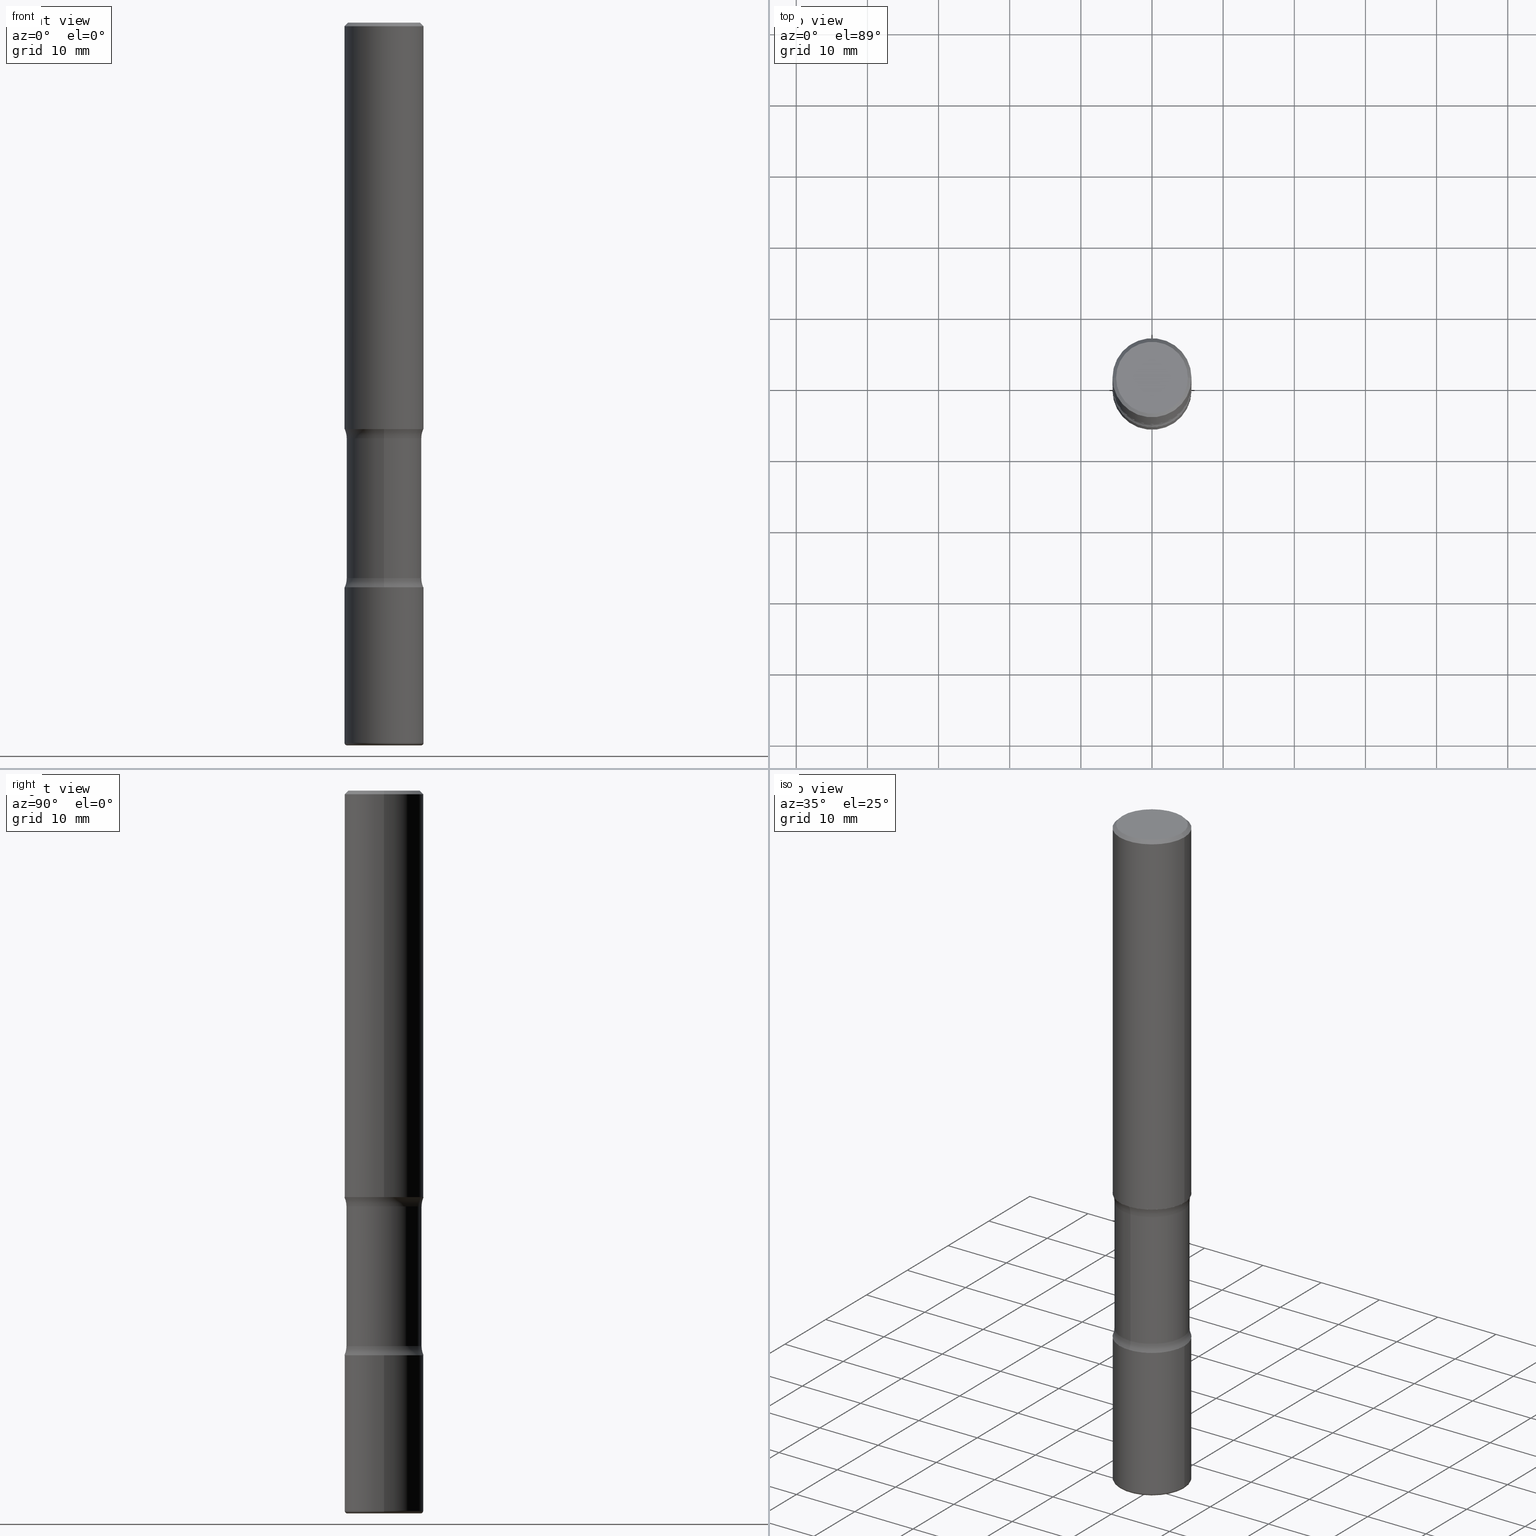
[diagram: canonical four-view strip — front | top / right | iso, engineering-drawing reading convention]
A machine part, canonical four-view strip (front | top / right | iso — engineering-drawing reading convention). The complete STEP part file that produces these views, byte-faithful:
ISO-10303-21;
HEADER;
FILE_DESCRIPTION (( 'STEP AP203' ),
    '1' );
FILE_NAME ('37858.STEP',
    '2024-03-02T00:50:00',
    ( '' ),
    ( '' ),
    'SwSTEP 2.0',
    'SolidWorks 2023',
    '' );
FILE_SCHEMA (( 'CONFIG_CONTROL_DESIGN' ));
ENDSEC;

DATA;
#1 = CC_DESIGN_PERSON_AND_ORGANIZATION_ASSIGNMENT ( #457, #62, ( #479 ) ) ;
#2 = CARTESIAN_POINT ( 'NONE',  ( -0.2187500000000003331, -1.235924090081471176E-14, -3.984999999999998987 ) ) ;
#3 = ORIENTED_EDGE ( 'NONE', *, *, #413, .F. ) ;
#4 = CIRCLE ( 'NONE', #106, 0.1250000000000000278 ) ;
#5 = ADVANCED_FACE ( 'NONE', ( #502 ), #344, .T. ) ;
#6 = CIRCLE ( 'NONE', #169, 0.2078125000000000111 ) ;
#7 = FACE_OUTER_BOUND ( 'NONE', #109, .T. ) ;
#8 = CARTESIAN_POINT ( 'NONE',  ( 4.890937612370289799E-31, -6.982962677686315028E-17, -0.02000000000000006981 ) ) ;
#9 = ORIENTED_EDGE ( 'NONE', *, *, #167, .T. ) ;
#10 = DIRECTION ( 'NONE',  ( -1.000000000000000000, 6.982962677686265922E-15, -4.883557194083112340E-29 ) ) ;
#11 = EDGE_LOOP ( 'NONE', ( #329, #9, #542, #165 ) ) ;
#12 = PRODUCT_DEFINITION ( 'UNKNOWN', '', #479, #507 ) ;
#13 = DIRECTION ( 'NONE',  ( 1.000000000000000000, -6.982962677686266711E-15, 0.000000000000000000 ) ) ;
#14 = CALENDAR_DATE ( 2024, 1, 3 ) ;
#15 = VERTEX_POINT ( 'NONE', #303 ) ;
#16 = AXIS2_PLACEMENT_3D ( 'NONE', #381, #513, #42 ) ;
#17 = CIRCLE ( 'NONE', #339, 0.2078125000000000389 ) ;
#18 = AXIS2_PLACEMENT_3D ( 'NONE', #263, #259, #232 ) ;
#19 = ORIENTED_EDGE ( 'NONE', *, *, #50, .F. ) ;
#20 = PERSON_AND_ORGANIZATION ( #195, #449 ) ;
#21 = ORIENTED_EDGE ( 'NONE', *, *, #119, .F. ) ;
#22 = CALENDAR_DATE ( 2024, 1, 3 ) ;
#23 = ORIENTED_EDGE ( 'NONE', *, *, #173, .T. ) ;
#24 = EDGE_CURVE ( 'NONE', #93, #15, #96, .T. ) ;
#25 = AXIS2_PLACEMENT_3D ( 'NONE', #518, #389, #432 ) ;
#26 = CARTESIAN_POINT ( 'NONE',  ( 7.642090019328550744E-29, -1.091087918388482645E-14, -3.124999999999999112 ) ) ;
#27 = AXIS2_PLACEMENT_3D ( 'NONE', #446, #87, #139 ) ;
#28 = DATE_AND_TIME ( #417, #332 ) ;
#29 = ORIENTED_EDGE ( 'NONE', *, *, #200, .T. ) ;
#30 = CARTESIAN_POINT ( 'NONE',  ( 1.451146931456732915E-15, 0.2078124999999918787, -2.301134588037355932 ) ) ;
#31 = EDGE_CURVE ( 'NONE', #201, #124, #464, .T. ) ;
#32 = CARTESIAN_POINT ( 'NONE',  ( -2.283259489883281366E-15, -0.3328125000000081157, -2.301134588037354156 ) ) ;
#33 = CONICAL_SURFACE ( 'NONE', #455, 0.2187499999999998890, 0.7853981633974480570 ) ;
#34 = CARTESIAN_POINT ( 'NONE',  ( -0.2187500000000000278, 1.554312234475219354E-15, -1.076017050993260762E-29 ) ) ;
#35 = CIRCLE ( 'NONE', #540, 0.1250000000000000278 ) ;
#36 = EDGE_CURVE ( 'NONE', #559, #124, #300, .T. ) ;
#37 = EDGE_CURVE ( 'NONE', #418, #559, #133, .T. ) ;
#38 = CARTESIAN_POINT ( 'NONE',  ( 4.890937612370289799E-31, -6.982962677686315028E-17, -0.02000000000000006981 ) ) ;
#39 = PLANE ( 'NONE',  #203 ) ;
#40 = FACE_OUTER_BOUND ( 'NONE', #374, .T. ) ;
#41 = ADVANCED_BREP_SHAPE_REPRESENTATION ( '37858', ( #427, #60, #77, #212 ), #421 ) ;
#42 = DIRECTION ( 'NONE',  ( 1.000000000000000000, -6.982962677686266711E-15, 4.876176775795935793E-29 ) ) ;
#43 = DIRECTION ( 'NONE',  ( -0.7071067811865473507, 2.468850131082255088E-15, -0.7071067811865476838 ) ) ;
#44 = EDGE_CURVE ( 'NONE', #121, #247, #298, .T. ) ;
#45 = CARTESIAN_POINT ( 'NONE',  ( 7.642090019328550744E-29, -1.091087918388482645E-14, -3.124999999999999112 ) ) ;
#46 = AXIS2_PLACEMENT_3D ( 'NONE', #131, #174, #382 ) ;
#47 = LOCAL_TIME ( 19, 50, 0.000000000000000000, #156 ) ;
#48 = ORIENTED_EDGE ( 'NONE', *, *, #340, .F. ) ;
#49 = AXIS2_PLACEMENT_3D ( 'NONE', #410, #103, #365 ) ;
#50 = EDGE_CURVE ( 'NONE', #163, #408, #448, .T. ) ;
#51 = DIRECTION ( 'NONE',  ( -2.445468806185136877E-29, 3.491481338843145188E-15, 1.000000000000000000 ) ) ;
#52 = ORIENTED_EDGE ( 'NONE', *, *, #90, .T. ) ;
#53 = CC_DESIGN_DATE_AND_TIME_ASSIGNMENT ( #71, #326, ( #12 ) ) ;
#54 = PLANE ( 'NONE',  #554 ) ;
#55 = VERTEX_POINT ( 'NONE', #258 ) ;
#56 = FACE_OUTER_BOUND ( 'NONE', #309, .T. ) ;
#57 = CARTESIAN_POINT ( 'NONE',  ( -1.463215588587134090E-15, -0.2078125000000107248, -3.073865411962643179 ) ) ;
#58 = ORIENTED_EDGE ( 'NONE', *, *, #494, .T. ) ;
#59 = AXIS2_PLACEMENT_3D ( 'NONE', #189, #114, #190 ) ;
#60 = MANIFOLD_SOLID_BREP ( 'Body-Move/Copy2[2]', #461 ) ;
#61 = DIRECTION ( 'NONE',  ( -2.445468806185136597E-29, 3.491481338843145583E-15, 1.000000000000000000 ) ) ;
#62 = PERSON_AND_ORGANIZATION_ROLE ( 'creator' ) ;
#63 = EDGE_LOOP ( 'NONE', ( #499, #376, #48, #524 ) ) ;
#64 = ADVANCED_FACE ( 'NONE', ( #295 ), #213, .T. ) ;
#65 = PERSON_AND_ORGANIZATION_ROLE ( 'design_supplier' ) ;
#66 = ORIENTED_EDGE ( 'NONE', *, *, #505, .T. ) ;
#67 = LINE ( 'NONE', #241, #384 ) ;
#68 = AXIS2_PLACEMENT_3D ( 'NONE', #218, #305, #13 ) ;
#69 = DATE_AND_TIME ( #234, #240 ) ;
#70 = VERTEX_POINT ( 'NONE', #129 ) ;
#71 = DATE_AND_TIME ( #22, #350 ) ;
#72 = ORIENTED_EDGE ( 'NONE', *, *, #36, .F. ) ;
#73 = CARTESIAN_POINT ( 'NONE',  ( 1.387863832190144049E-15, 0.1987499999999998157, -6.939319160950745885E-16 ) ) ;
#74 = CARTESIAN_POINT ( 'NONE',  ( 5.502304813916556222E-29, -7.855833012397075293E-15, -2.249999999999999556 ) ) ;
#75 =( CONVERSION_BASED_UNIT ( 'INCH', #391 ) LENGTH_UNIT ( ) NAMED_UNIT ( #130 ) );
#76 = ORIENTED_EDGE ( 'NONE', *, *, #158, .F. ) ;
#77 = MANIFOLD_SOLID_BREP ( 'Body-Move/Copy2[4]', #221 ) ;
#78 = AXIS2_PLACEMENT_3D ( 'NONE', #74, #503, #122 ) ;
#79 = CARTESIAN_POINT ( 'NONE',  ( 9.781875224740546387E-29, -1.396592535537258233E-14, -4.000000000000000000 ) ) ;
#80 = DIRECTION ( 'NONE',  ( 2.445468806185136597E-29, -3.491481338843145583E-15, -1.000000000000000000 ) ) ;
#81 = ADVANCED_FACE ( 'NONE', ( #342 ), #33, .T. ) ;
#82 = CARTESIAN_POINT ( 'NONE',  ( 7.642090019328550744E-29, -1.091087918388482645E-14, -3.124999999999999112 ) ) ;
#83 = DIRECTION ( 'NONE',  ( -1.000000000000000000, 6.982962677686265922E-15, -4.883557194083112340E-29 ) ) ;
#84 = AXIS2_PLACEMENT_3D ( 'NONE', #183, #476, #271 ) ;
#85 = CARTESIAN_POINT ( 'NONE',  ( 9.745193192647766827E-29, -1.391355313528993249E-14, -3.984999999999998987 ) ) ;
#86 = APPROVAL_PERSON_ORGANIZATION ( #541, #387, #334 ) ;
#87 = DIRECTION ( 'NONE',  ( 2.438088387897960049E-29, -3.491481338843145188E-15, -1.000000000000000000 ) ) ;
#88 = CARTESIAN_POINT ( 'NONE',  ( 0.2037500000000001810, -1.538870400095115901E-14, -4.000000000000000000 ) ) ;
#89 = CARTESIAN_POINT ( 'NONE',  ( -1.463215588587155192E-15, -0.2078125000000081712, -2.301134588037354156 ) ) ;
#90 = EDGE_CURVE ( 'NONE', #557, #247, #404, .T. ) ;
#91 = DIRECTION ( 'NONE',  ( 6.982962677686265922E-15, 1.000000000000000000, -3.352515114831814446E-15 ) ) ;
#92 = DIRECTION ( 'NONE',  ( 2.542508401758147997E-29, -3.352515114831814446E-15, -1.000000000000000000 ) ) ;
#93 = VERTEX_POINT ( 'NONE', #89 ) ;
#94 = FACE_OUTER_BOUND ( 'NONE', #157, .T. ) ;
#95 = DIRECTION ( 'NONE',  ( 1.000000000000000000, -6.982962677686265922E-15, 0.000000000000000000 ) ) ;
#96 = CIRCLE ( 'NONE', #437, 0.1250000000000000278 ) ;
#97 = AXIS2_PLACEMENT_3D ( 'NONE', #273, #312, #394 ) ;
#98 = VECTOR ( 'NONE', #43, 39.37007874015748143 ) ;
#99 = ADVANCED_FACE ( 'NONE', ( #390 ), #286, .F. ) ;
#100 = CARTESIAN_POINT ( 'NONE',  ( 0.000000000000000000, 0.000000000000000000, 0.000000000000000000 ) ) ;
#101 = DIRECTION ( 'NONE',  ( 2.542508401758147997E-29, -3.352515114831814446E-15, -1.000000000000000000 ) ) ;
#102 = EDGE_LOOP ( 'NONE', ( #285, #327 ) ) ;
#103 = DIRECTION ( 'NONE',  ( -2.445468806185136597E-29, 3.491481338843145583E-15, 1.000000000000000000 ) ) ;
#104 = LINE ( 'NONE', #230, #98 ) ;
#105 = ORIENTED_EDGE ( 'NONE', *, *, #251, .T. ) ;
#106 = AXIS2_PLACEMENT_3D ( 'NONE', #290, #248, #416 ) ;
#107 = LOCAL_TIME ( 19, 50, 0.000000000000000000, #279 ) ;
#108 = PERSON_AND_ORGANIZATION ( #195, #449 ) ;
#109 = EDGE_LOOP ( 'NONE', ( #314, #395, #72, #76 ) ) ;
#110 = EDGE_CURVE ( 'NONE', #360, #238, #366, .T. ) ;
#111 = CARTESIAN_POINT ( 'NONE',  ( 7.517041979366069235E-29, -1.073234372398296787E-14, -3.073865411962643623 ) ) ;
#112 = APPLICATION_PROTOCOL_DEFINITION ( 'international standard', 'config_control_design', 1994, #331 ) ;
#113 = EDGE_LOOP ( 'NONE', ( #166, #336, #493, #282 ) ) ;
#114 = DIRECTION ( 'NONE',  ( 7.105427357601001859E-15, 1.000000000000000000, -3.491481338843145583E-15 ) ) ;
#115 = PERSON_AND_ORGANIZATION ( #195, #449 ) ;
#116 = ORIENTED_EDGE ( 'NONE', *, *, #24, .T. ) ;
#117 = AXIS2_PLACEMENT_3D ( 'NONE', #8, #147, #471 ) ;
#118 = CIRCLE ( 'NONE', #18, 0.2187500000000002498 ) ;
#119 = EDGE_CURVE ( 'NONE', #270, #458, #260, .T. ) ;
#120 = COORDINATED_UNIVERSAL_TIME_OFFSET ( 5, 0, .BEHIND. ) ;
#121 = VERTEX_POINT ( 'NONE', #30 ) ;
#122 = DIRECTION ( 'NONE',  ( 1.000000000000000000, -6.982962677686263555E-15, 0.000000000000000000 ) ) ;
#123 = DATE_AND_TIME ( #537, #47 ) ;
#124 = VERTEX_POINT ( 'NONE', #545 ) ;
#125 = CC_DESIGN_PERSON_AND_ORGANIZATION_ASSIGNMENT ( #20, #492, ( #380 ) ) ;
#126 = DIRECTION ( 'NONE',  ( 1.000000000000000000, -6.982962677686266711E-15, 0.000000000000000000 ) ) ;
#127 = AXIS2_PLACEMENT_3D ( 'NONE', #385, #210, #338 ) ;
#128 = CIRCLE ( 'NONE', #252, 0.2037500000000001810 ) ;
#129 = CARTESIAN_POINT ( 'NONE',  ( 1.527523085743927049E-15, 0.2187499999999923117, -2.250000000000000444 ) ) ;
#130 = DIMENSIONAL_EXPONENTS ( 1.000000000000000000, 0.000000000000000000, 0.000000000000000000, 0.000000000000000000, 0.000000000000000000, 0.000000000000000000, 0.000000000000000000 ) ;
#131 = CARTESIAN_POINT ( 'NONE',  ( 0.000000000000000000, 0.000000000000000000, 0.000000000000000000 ) ) ;
#132 = CARTESIAN_POINT ( 'NONE',  ( 5.579661872426862939E-29, -8.102664672140540691E-15, -2.301134588037355044 ) ) ;
#133 = LINE ( 'NONE', #292, #438 ) ;
#134 = PLANE ( 'NONE',  #516 ) ;
#135 = DIRECTION ( 'NONE',  ( 6.982962677686265133E-15, 1.000000000000000000, -3.943720411906303717E-15 ) ) ;
#136 = AXIS2_PLACEMENT_3D ( 'NONE', #553, #462, #171 ) ;
#137 = EDGE_CURVE ( 'NONE', #93, #121, #485, .T. ) ;
#138 = DIRECTION ( 'NONE',  ( -2.445468806185136877E-29, 3.491481338843145188E-15, 1.000000000000000000 ) ) ;
#139 = DIRECTION ( 'NONE',  ( -1.000000000000000000, 6.982962677686265922E-15, -4.876176775795935793E-29 ) ) ;
#140 = DIRECTION ( 'NONE',  ( 2.542508401758147997E-29, -3.352515114831814446E-15, -1.000000000000000000 ) ) ;
#141 = DIRECTION ( 'NONE',  ( 2.542508401758147997E-29, -3.352515114831814446E-15, -1.000000000000000000 ) ) ;
#142 = DIRECTION ( 'NONE',  ( 1.000000000000000000, -6.982962677686271444E-15, 4.883557194083114583E-29 ) ) ;
#143 = EDGE_CURVE ( 'NONE', #418, #289, #168, .T. ) ;
#144 = FACE_OUTER_BOUND ( 'NONE', #11, .T. ) ;
#145 = VECTOR ( 'NONE', #138, 39.37007874015748143 ) ;
#146 = ORIENTED_EDGE ( 'NONE', *, *, #37, .T. ) ;
#147 = DIRECTION ( 'NONE',  ( 2.445468806185136597E-29, -3.491481338843145583E-15, -1.000000000000000000 ) ) ;
#148 = ORIENTED_EDGE ( 'NONE', *, *, #137, .F. ) ;
#149 = CARTESIAN_POINT ( 'NONE',  ( -0.2037500000000001810, -1.243871771603804148E-14, -4.000000000000000000 ) ) ;
#150 = APPROVAL_DATE_TIME ( #123, #179 ) ;
#151 = ORIENTED_EDGE ( 'NONE', *, *, #494, .F. ) ;
#152 = AXIS2_PLACEMENT_3D ( 'NONE', #512, #315, #266 ) ;
#153 = CC_DESIGN_SECURITY_CLASSIFICATION ( #261, ( #479 ) ) ;
#154 = DIRECTION ( 'NONE',  ( 2.542508401758147997E-29, -3.352515114831814446E-15, -1.000000000000000000 ) ) ;
#155 = VERTEX_POINT ( 'NONE', #347 ) ;
#156 = COORDINATED_UNIVERSAL_TIME_OFFSET ( 5, 0, .BEHIND. ) ;
#157 = EDGE_LOOP ( 'NONE', ( #148, #116, #501, #249 ) ) ;
#158 = EDGE_CURVE ( 'NONE', #155, #559, #296, .T. ) ;
#159 = DIRECTION ( 'NONE',  ( 2.438088387897960049E-29, -3.491481338843145188E-15, -1.000000000000000000 ) ) ;
#160 = ORIENTED_EDGE ( 'NONE', *, *, #110, .T. ) ;
#161 = CIRCLE ( 'NONE', #49, 0.1987499999999998157 ) ;
#162 = APPROVAL_STATUS ( 'not_yet_approved' ) ;
#163 = VERTEX_POINT ( 'NONE', #491 ) ;
#164 = ADVANCED_FACE ( 'NONE', ( #409 ), #39, .F. ) ;
#165 = ORIENTED_EDGE ( 'NONE', *, *, #343, .F. ) ;
#166 = ORIENTED_EDGE ( 'NONE', *, *, #287, .T. ) ;
#167 = EDGE_CURVE ( 'NONE', #201, #155, #358, .T. ) ;
#168 = CIRCLE ( 'NONE', #46, 0.1987499999999998157 ) ;
#169 = AXIS2_PLACEMENT_3D ( 'NONE', #450, #475, #551 ) ;
#170 = DIRECTION ( 'NONE',  ( 6.860497997771532351E-15, 1.000000000000000000, 0.000000000000000000 ) ) ;
#171 = DIRECTION ( 'NONE',  ( 6.982962677686265133E-15, 1.000000000000000000, -2.629146941270869802E-15 ) ) ;
#172 = DIRECTION ( 'NONE',  ( -6.982962677686265133E-15, -1.000000000000000000, 0.000000000000000000 ) ) ;
#173 = EDGE_CURVE ( 'NONE', #55, #557, #4, .T. ) ;
#174 = DIRECTION ( 'NONE',  ( -2.445468806185136597E-29, 3.491481338843145583E-15, 1.000000000000000000 ) ) ;
#175 = DIRECTION ( 'NONE',  ( 6.982962677686265922E-15, 1.000000000000000000, -3.352515114831814446E-15 ) ) ;
#176 = FACE_OUTER_BOUND ( 'NONE', #63, .T. ) ;
#177 = PRODUCT_RELATED_PRODUCT_CATEGORY ( 'detail', '', ( #380 ) ) ;
#178 = DIRECTION ( 'NONE',  ( -2.445468806185136597E-29, 3.491481338843145583E-15, 1.000000000000000000 ) ) ;
#179 = APPROVAL ( #489, 'UNSPECIFIED' ) ;
#180 = CARTESIAN_POINT ( 'NONE',  ( -0.1987499999999998157, 1.422778645578575501E-15, -9.827974342635076689E-30 ) ) ;
#181 = ORIENTED_EDGE ( 'NONE', *, *, #357, .F. ) ;
#182 = FACE_OUTER_BOUND ( 'NONE', #519, .T. ) ;
#183 = CARTESIAN_POINT ( 'NONE',  ( 9.745193192647766827E-29, -1.391355313528993249E-14, -3.984999999999998987 ) ) ;
#184 = CIRCLE ( 'NONE', #514, 0.2187500000000001943 ) ;
#185 = AXIS2_PLACEMENT_3D ( 'NONE', #386, #348, #549 ) ;
#186 = ORIENTED_EDGE ( 'NONE', *, *, #420, .T. ) ;
#187 = CARTESIAN_POINT ( 'NONE',  ( 1.451146931456752440E-15, 0.2078124999999892975, -3.073865411962644068 ) ) ;
#188 = DIRECTION ( 'NONE',  ( -6.982962677686267499E-15, -1.000000000000000000, 0.000000000000000000 ) ) ;
#189 = CARTESIAN_POINT ( 'NONE',  ( -0.2037500000000002087, -1.246582231117872609E-14, -3.984999999999998987 ) ) ;
#190 = DIRECTION ( 'NONE',  ( -1.000000000000000000, 7.105427357600953738E-15, 0.000000000000000000 ) ) ;
#191 = APPROVAL_DATE_TIME ( #28, #387 ) ;
#192 = ORIENTED_EDGE ( 'NONE', *, *, #225, .F. ) ;
#193 = VECTOR ( 'NONE', #428, 39.37007874015748143 ) ;
#194 = AXIS2_PLACEMENT_3D ( 'NONE', #434, #178, #307 ) ;
#195 = PERSON ( 'UNSPECIFIED', 'UNSPECIFIED', 'UNSPECIFIED', ('UNSPECIFIED'), ('UNSPECIFIED'), ('UNSPECIFIED') ) ;
#196 =( NAMED_UNIT ( * ) SI_UNIT ( $, .STERADIAN. ) SOLID_ANGLE_UNIT ( ) );
#197 = EDGE_LOOP ( 'NONE', ( #192, #206, #272, #280 ) ) ;
#198 = CARTESIAN_POINT ( 'NONE',  ( 1.527523085743948349E-15, 0.2187499999999893141, -3.124999999999999556 ) ) ;
#199 = ORIENTED_EDGE ( 'NONE', *, *, #110, .F. ) ;
#200 = EDGE_CURVE ( 'NONE', #408, #163, #184, .T. ) ;
#201 = VERTEX_POINT ( 'NONE', #396 ) ;
#202 = CLOSED_SHELL ( 'NONE', ( #5, #320, #556, #245, #236, #257 ) ) ;
#203 = AXIS2_PLACEMENT_3D ( 'NONE', #73, #159, #346 ) ;
#204 = DIRECTION ( 'NONE',  ( -2.445468806185136597E-29, 3.491481338843145583E-15, 1.000000000000000000 ) ) ;
#205 = APPROVAL_DATE_TIME ( #406, #362 ) ;
#206 = ORIENTED_EDGE ( 'NONE', *, *, #137, .T. ) ;
#207 = PRODUCT_DEFINITION_SHAPE ( 'NONE', 'NONE',  #12 ) ;
#208 = DIRECTION ( 'NONE',  ( 1.000000000000000000, -6.982962677686269077E-15, 0.000000000000000000 ) ) ;
#209 = ADVANCED_FACE ( 'NONE', ( #182 ), #268, .F. ) ;
#210 = DIRECTION ( 'NONE',  ( 2.542508401758147997E-29, -3.352515114831814446E-15, -1.000000000000000000 ) ) ;
#211 = VECTOR ( 'NONE', #445, 39.37007874015748143 ) ;
#212 = AXIS2_PLACEMENT_3D ( 'NONE', #411, #322, #281 ) ;
#213 = CYLINDRICAL_SURFACE ( 'NONE', #136, 0.2078125000000000111 ) ;
#214 = EDGE_CURVE ( 'NONE', #238, #458, #419, .T. ) ;
#215 = PLANE ( 'NONE',  #185 ) ;
#216 = DIRECTION ( 'NONE',  ( -2.445468806185136597E-29, 3.491481338843145583E-15, 1.000000000000000000 ) ) ;
#217 =( LENGTH_UNIT ( ) NAMED_UNIT ( * ) SI_UNIT ( $, .METRE. ) );
#218 = CARTESIAN_POINT ( 'NONE',  ( 4.890937612370289799E-31, -6.982962677686315028E-17, -0.02000000000000006981 ) ) ;
#219 = DIRECTION ( 'NONE',  ( 6.982962677686265922E-15, 1.000000000000000000, -3.746534391310985612E-15 ) ) ;
#220 = DIRECTION ( 'NONE',  ( 2.542508401758147997E-29, -3.352515114831814446E-15, -1.000000000000000000 ) ) ;
#221 = CLOSED_SHELL ( 'NONE', ( #64, #407, #429, #500, #543, #209, #99, #284 ) ) ;
#222 = CARTESIAN_POINT ( 'NONE',  ( 7.642090019328550744E-29, -1.091087918388482645E-14, -3.124999999999999112 ) ) ;
#223 = AXIS2_PLACEMENT_3D ( 'NONE', #253, #265, #508 ) ;
#224 = DIRECTION ( 'NONE',  ( 6.982962677686265922E-15, 1.000000000000000000, -2.497689594207324005E-15 ) ) ;
#225 = EDGE_CURVE ( 'NONE', #93, #557, #306, .T. ) ;
#226 = DIRECTION ( 'NONE',  ( -1.000000000000000000, 6.982962677686265922E-15, -4.876176775795935793E-29 ) ) ;
#227 = EDGE_LOOP ( 'NONE', ( #538, #23, #52, #3 ) ) ;
#228 = FACE_OUTER_BOUND ( 'NONE', #527, .T. ) ;
#229 = AXIS2_PLACEMENT_3D ( 'NONE', #472, #220, #388 ) ;
#230 = CARTESIAN_POINT ( 'NONE',  ( -0.2187499999999998890, 1.457693458967006953E-15, -0.02000000000000006981 ) ) ;
#231 = CC_DESIGN_DATE_AND_TIME_ASSIGNMENT ( #69, #375, ( #261 ) ) ;
#232 = DIRECTION ( 'NONE',  ( 6.982962677686265922E-15, 1.000000000000000000, -3.746534391310985612E-15 ) ) ;
#233 = CARTESIAN_POINT ( 'NONE',  ( 0.000000000000000000, 0.000000000000000000, 0.000000000000000000 ) ) ;
#234 = CALENDAR_DATE ( 2024, 1, 3 ) ;
#235 = EDGE_LOOP ( 'NONE', ( #456, #560, #436, #186 ) ) ;
#236 = ADVANCED_FACE ( 'NONE', ( #56 ), #440, .T. ) ;
#237 = COORDINATED_UNIVERSAL_TIME_OFFSET ( 5, 0, .BEHIND. ) ;
#238 = VERTEX_POINT ( 'NONE', #88 ) ;
#239 = CIRCLE ( 'NONE', #546, 0.2187500000000000833 ) ;
#240 = LOCAL_TIME ( 19, 50, 0.000000000000000000, #237 ) ;
#241 = CARTESIAN_POINT ( 'NONE',  ( 0.2187500000000001665, -1.527523085743872026E-15, 1.066663669705361725E-29 ) ) ;
#242 =( NAMED_UNIT ( * ) PLANE_ANGLE_UNIT ( ) SI_UNIT ( $, .RADIAN. ) );
#243 = ADVANCED_FACE ( 'NONE', ( #144 ), #555, .T. ) ;
#244 = ORIENTED_EDGE ( 'NONE', *, *, #343, .T. ) ;
#245 = ADVANCED_FACE ( 'NONE', ( #228 ), #349, .T. ) ;
#246 = PERSON_AND_ORGANIZATION ( #195, #449 ) ;
#247 = VERTEX_POINT ( 'NONE', #187 ) ;
#248 = DIRECTION ( 'NONE',  ( 1.000000000000000000, -6.860497997771530774E-15, 4.842500725038393941E-29 ) ) ;
#249 = ORIENTED_EDGE ( 'NONE', *, *, #505, .F. ) ;
#250 = VECTOR ( 'NONE', #51, 39.37007874015748143 ) ;
#251 = EDGE_CURVE ( 'NONE', #270, #408, #474, .T. ) ;
#252 = AXIS2_PLACEMENT_3D ( 'NONE', #400, #444, #525 ) ;
#253 = CARTESIAN_POINT ( 'NONE',  ( 7.512079899623131265E-29, -1.073944970459889485E-14, -3.073865411962643623 ) ) ;
#254 = EDGE_CURVE ( 'NONE', #55, #398, #267, .T. ) ;
#255 = CARTESIAN_POINT ( 'NONE',  ( 4.890937612370289799E-31, -6.982962677686315028E-17, -0.02000000000000006981 ) ) ;
#256 = ADVANCED_FACE ( 'NONE', ( #40 ), #321, .T. ) ;
#257 = ADVANCED_FACE ( 'NONE', ( #302 ), #54, .F. ) ;
#258 = CARTESIAN_POINT ( 'NONE',  ( -1.500733937012446996E-15, -0.2187500000000110745, -3.124999999999998668 ) ) ;
#259 = DIRECTION ( 'NONE',  ( 2.542508401758147997E-29, -3.352515114831814446E-15, -1.000000000000000000 ) ) ;
#260 = CIRCLE ( 'NONE', #539, 0.2187500000000000833 ) ;
#261 = SECURITY_CLASSIFICATION ( '', '', #414 ) ;
#262 = ORIENTED_EDGE ( 'NONE', *, *, #287, .F. ) ;
#263 = CARTESIAN_POINT ( 'NONE',  ( 5.417395167790170756E-29, -7.977428458406990284E-15, -2.249999999999999556 ) ) ;
#264 = DIRECTION ( 'NONE',  ( 1.000000000000000000, -6.982962677686266711E-15, 4.876176775795935232E-29 ) ) ;
#265 = DIRECTION ( 'NONE',  ( 2.542508401758147997E-29, -3.352515114831814446E-15, -1.000000000000000000 ) ) ;
#266 = DIRECTION ( 'NONE',  ( 6.982962677686265133E-15, 1.000000000000000000, -2.629146941270869802E-15 ) ) ;
#267 = CIRCLE ( 'NONE', #294, 0.2187500000000001943 ) ;
#268 = PLANE ( 'NONE',  #97 ) ;
#269 = AXIS2_PLACEMENT_3D ( 'NONE', #473, #141, #175 ) ;
#270 = VERTEX_POINT ( 'NONE', #2 ) ;
#271 = DIRECTION ( 'NONE',  ( 1.000000000000000000, -6.982962677686271444E-15, 4.883557194083114583E-29 ) ) ;
#272 = ORIENTED_EDGE ( 'NONE', *, *, #44, .T. ) ;
#273 = CARTESIAN_POINT ( 'NONE',  ( 1.309248789957701946E-28, -3.105599201986939029E-15, -3.124999999999999112 ) ) ;
#274 = DIRECTION ( 'NONE',  ( 2.542508401758147437E-29, -3.352515114831814446E-15, -1.000000000000000000 ) ) ;
#275 = ORIENTED_EDGE ( 'NONE', *, *, #36, .T. ) ;
#276 = FACE_OUTER_BOUND ( 'NONE', #454, .T. ) ;
#277 = CC_DESIGN_APPROVAL ( #179, ( #12 ) ) ;
#278 = DIRECTION ( 'NONE',  ( 6.982962677686265922E-15, 1.000000000000000000, -2.497689594207324005E-15 ) ) ;
#279 = COORDINATED_UNIVERSAL_TIME_OFFSET ( 5, 0, .BEHIND. ) ;
#280 = ORIENTED_EDGE ( 'NONE', *, *, #90, .F. ) ;
#281 = DIRECTION ( 'NONE',  ( 1.000000000000000000, 0.000000000000000000, 0.000000000000000000 ) ) ;
#282 = ORIENTED_EDGE ( 'NONE', *, *, #44, .F. ) ;
#283 = APPLICATION_CONTEXT ( 'configuration controlled 3d designs of mechanical parts and assemblies' ) ;
#284 = ADVANCED_FACE ( 'NONE', ( #397 ), #552, .T. ) ;
#285 = ORIENTED_EDGE ( 'NONE', *, *, #363, .T. ) ;
#286 = TOROIDAL_SURFACE ( 'NONE', #229, 0.3328125000000000666, 0.1250000000000000555 ) ;
#287 = EDGE_CURVE ( 'NONE', #121, #93, #17, .T. ) ;
#288 = PERSON_AND_ORGANIZATION ( #195, #449 ) ;
#289 = VERTEX_POINT ( 'NONE', #180 ) ;
#290 = CARTESIAN_POINT ( 'NONE',  ( -2.283259489883262433E-15, -0.3328125000000107803, -3.073865411962642735 ) ) ;
#291 = ORIENTED_EDGE ( 'NONE', *, *, #340, .T. ) ;
#292 = CARTESIAN_POINT ( 'NONE',  ( 0.2187499999999998890, -1.570563563789384841E-15, -0.02000000000000006981 ) ) ;
#293 = AXIS2_PLACEMENT_3D ( 'NONE', #82, #216, #511 ) ;
#294 = AXIS2_PLACEMENT_3D ( 'NONE', #45, #92, #224 ) ;
#295 = FACE_OUTER_BOUND ( 'NONE', #113, .T. ) ;
#296 = LINE ( 'NONE', #424, #504 ) ;
#297 = DIRECTION ( 'NONE',  ( 2.542508401758147997E-29, -3.352515114831814446E-15, -1.000000000000000000 ) ) ;
#298 = LINE ( 'NONE', #506, #193 ) ;
#299 = CARTESIAN_POINT ( 'NONE',  ( 5.502304813916556222E-29, -7.855833012397075293E-15, -2.249999999999999556 ) ) ;
#300 = CIRCLE ( 'NONE', #468, 0.2187499999999998890 ) ;
#301 = AXIS2_PLACEMENT_3D ( 'NONE', #111, #509, #364 ) ;
#302 = FACE_OUTER_BOUND ( 'NONE', #487, .T. ) ;
#303 = CARTESIAN_POINT ( 'NONE',  ( -1.500733937012469676E-15, -0.2187500000000082157, -2.249999999999998668 ) ) ;
#304 = CARTESIAN_POINT ( 'NONE',  ( 0.2187500000000003331, -1.544107622103380570E-14, -3.984999999999998987 ) ) ;
#305 = DIRECTION ( 'NONE',  ( -2.445468806185136597E-29, 3.491481338843145583E-15, 1.000000000000000000 ) ) ;
#306 = LINE ( 'NONE', #523, #211 ) ;
#307 = DIRECTION ( 'NONE',  ( 1.000000000000000000, -6.982962677686263555E-15, 0.000000000000000000 ) ) ;
#308 = CARTESIAN_POINT ( 'NONE',  ( 0.2037500000000002087, -1.533633178086850917E-14, -3.984999999999998987 ) ) ;
#309 = EDGE_LOOP ( 'NONE', ( #452, #415, #372, #490 ) ) ;
#310 = EDGE_CURVE ( 'NONE', #15, #70, #392, .T. ) ;
#311 = CIRCLE ( 'NONE', #68, 0.2187499999999998890 ) ;
#312 = DIRECTION ( 'NONE',  ( -2.542508401758147437E-29, 3.352515114831814446E-15, 1.000000000000000000 ) ) ;
#313 = CC_DESIGN_APPROVAL ( #362, ( #479 ) ) ;
#314 = ORIENTED_EDGE ( 'NONE', *, *, #520, .T. ) ;
#315 = DIRECTION ( 'NONE',  ( 2.542508401758147997E-29, -3.352515114831814446E-15, -1.000000000000000000 ) ) ;
#316 = ORIENTED_EDGE ( 'NONE', *, *, #510, .T. ) ;
#317 = DIRECTION ( 'NONE',  ( 1.000000000000000000, -6.982962677686266711E-15, 4.876176775795935232E-29 ) ) ;
#318 = EDGE_LOOP ( 'NONE', ( #354, #199 ) ) ;
#319 = FACE_OUTER_BOUND ( 'NONE', #227, .T. ) ;
#320 = ADVANCED_FACE ( 'NONE', ( #176 ), #496, .T. ) ;
#321 = CONICAL_SURFACE ( 'NONE', #117, 0.2187499999999998890, 0.7853981633974480570 ) ;
#322 = DIRECTION ( 'NONE',  ( 0.000000000000000000, 0.000000000000000000, 1.000000000000000000 ) ) ;
#323 = TOROIDAL_SURFACE ( 'NONE', #269, 0.3328124999999999556, 0.1250000000000000278 ) ;
#324 = ORIENTED_EDGE ( 'NONE', *, *, #143, .F. ) ;
#325 = DIRECTION ( 'NONE',  ( -2.445468806185136877E-29, 3.491481338843145188E-15, 1.000000000000000000 ) ) ;
#326 = DATE_TIME_ROLE ( 'creation_date' ) ;
#327 = ORIENTED_EDGE ( 'NONE', *, *, #143, .T. ) ;
#328 = EDGE_LOOP ( 'NONE', ( #324, #146, #275, #151 ) ) ;
#329 = ORIENTED_EDGE ( 'NONE', *, *, #31, .F. ) ;
#330 = AXIS2_PLACEMENT_3D ( 'NONE', #100, #558, #264 ) ;
#331 = APPLICATION_CONTEXT ( 'configuration controlled 3d designs of mechanical parts and assemblies' ) ;
#332 = LOCAL_TIME ( 19, 50, 0.000000000000000000, #459 ) ;
#333 = EDGE_CURVE ( 'NONE', #398, #55, #528, .T. ) ;
#334 = APPROVAL_ROLE ( '' ) ;
#335 = CC_DESIGN_PERSON_AND_ORGANIZATION_ASSIGNMENT ( #115, #401, ( #261 ) ) ;
#336 = ORIENTED_EDGE ( 'NONE', *, *, #225, .T. ) ;
#337 = UNCERTAINTY_MEASURE_WITH_UNIT (LENGTH_MEASURE( 1.000000000000000082E-05 ), #75, 'distance_accuracy_value', 'NONE');
#338 = DIRECTION ( 'NONE',  ( 6.982962677686265133E-15, 1.000000000000000000, -3.943720411906303717E-15 ) ) ;
#339 = AXIS2_PLACEMENT_3D ( 'NONE', #482, #101, #135 ) ;
#340 = EDGE_CURVE ( 'NONE', #458, #270, #239, .T. ) ;
#341 = CIRCLE ( 'NONE', #59, 0.01500000000000035159 ) ;
#342 = FACE_OUTER_BOUND ( 'NONE', #328, .T. ) ;
#343 = EDGE_CURVE ( 'NONE', #124, #559, #311, .T. ) ;
#344 = CYLINDRICAL_SURFACE ( 'NONE', #16, 0.2187500000000001665 ) ;
#345 = FACE_OUTER_BOUND ( 'NONE', #481, .T. ) ;
#346 = DIRECTION ( 'NONE',  ( -1.000000000000000000, 6.982962677686265922E-15, -4.876176775795935793E-29 ) ) ;
#347 = CARTESIAN_POINT ( 'NONE',  ( 0.2187500000000001388, -9.383356098140946925E-15, -2.249999999999999556 ) ) ;
#348 = DIRECTION ( 'NONE',  ( -2.438088387897960049E-29, 3.491481338843145188E-15, 1.000000000000000000 ) ) ;
#349 = TOROIDAL_SURFACE ( 'NONE', #84, 0.2037500000000002087, 0.01500000000000033598 ) ;
#350 = LOCAL_TIME ( 19, 50, 0.000000000000000000, #120 ) ;
#351 = ADVANCED_FACE ( 'NONE', ( #7 ), #371, .T. ) ;
#352 = FACE_OUTER_BOUND ( 'NONE', #318, .T. ) ;
#353 = CARTESIAN_POINT ( 'NONE',  ( 9.745193192647766827E-29, -1.391355313528993249E-14, -3.984999999999998987 ) ) ;
#354 = ORIENTED_EDGE ( 'NONE', *, *, #403, .F. ) ;
#355 = DIRECTION ( 'NONE',  ( 2.438088387897960049E-29, -3.491481338843145188E-15, -1.000000000000000000 ) ) ;
#356 = ORIENTED_EDGE ( 'NONE', *, *, #520, .F. ) ;
#357 = EDGE_CURVE ( 'NONE', #360, #270, #341, .T. ) ;
#358 = CIRCLE ( 'NONE', #78, 0.2187500000000001388 ) ;
#359 = CARTESIAN_POINT ( 'NONE',  ( 1.309248789957701946E-28, -3.105599201986939029E-15, -3.124999999999999112 ) ) ;
#360 = VERTEX_POINT ( 'NONE', #149 ) ;
#361 = CARTESIAN_POINT ( 'NONE',  ( 0.1987499999999998157, -1.467043770423237861E-15, 9.982525199991778089E-30 ) ) ;
#362 = APPROVAL ( #453, 'UNSPECIFIED' ) ;
#363 = EDGE_CURVE ( 'NONE', #289, #418, #161, .T. ) ;
#364 = DIRECTION ( 'NONE',  ( 6.982962677686265922E-15, 1.000000000000000000, -3.352515114831814446E-15 ) ) ;
#365 = DIRECTION ( 'NONE',  ( 1.000000000000000000, -6.982962677686266711E-15, 4.876176775795936353E-29 ) ) ;
#366 = CIRCLE ( 'NONE', #377, 0.2037500000000001810 ) ;
#367 = CC_DESIGN_APPROVAL ( #387, ( #261 ) ) ;
#368 = PERSON_AND_ORGANIZATION ( #195, #449 ) ;
#369 = TOROIDAL_SURFACE ( 'NONE', #301, 0.3328125000000000666, 0.1250000000000000555 ) ;
#370 = ORIENTED_EDGE ( 'NONE', *, *, #37, .F. ) ;
#371 = CYLINDRICAL_SURFACE ( 'NONE', #531, 0.2187500000000000278 ) ;
#372 = ORIENTED_EDGE ( 'NONE', *, *, #383, .T. ) ;
#373 = APPROVAL_ROLE ( '' ) ;
#374 = EDGE_LOOP ( 'NONE', ( #370, #412, #58, #244 ) ) ;
#375 = DATE_TIME_ROLE ( 'classification_date' ) ;
#376 = ORIENTED_EDGE ( 'NONE', *, *, #357, .T. ) ;
#377 = AXIS2_PLACEMENT_3D ( 'NONE', #79, #422, #467 ) ;
#378 = CIRCLE ( 'NONE', #393, 0.1250000000000000278 ) ;
#379 = EDGE_LOOP ( 'NONE', ( #291, #105, #19, #477 ) ) ;
#380 = PRODUCT ( '37858', '37858', '', ( #486 ) ) ;
#381 = CARTESIAN_POINT ( 'NONE',  ( 0.000000000000000000, 0.000000000000000000, 0.000000000000000000 ) ) ;
#382 = DIRECTION ( 'NONE',  ( 1.000000000000000000, -6.982962677686266711E-15, 4.876176775795936353E-29 ) ) ;
#383 = EDGE_CURVE ( 'NONE', #458, #163, #67, .T. ) ;
#384 = VECTOR ( 'NONE', #325, 39.37007874015748143 ) ;
#385 = CARTESIAN_POINT ( 'NONE',  ( 5.547405287495589114E-29, -8.148857937692923452E-15, -2.301134588037355044 ) ) ;
#386 = CARTESIAN_POINT ( 'NONE',  ( 5.502304813916556222E-29, -7.855833012397075293E-15, -2.249999999999999556 ) ) ;
#387 = APPROVAL ( #162, 'UNSPECIFIED' ) ;
#388 = DIRECTION ( 'NONE',  ( 6.982962677686265922E-15, 1.000000000000000000, -3.352515114831814446E-15 ) ) ;
#389 = DIRECTION ( 'NONE',  ( -2.445468806185136597E-29, 3.491481338843145583E-15, 1.000000000000000000 ) ) ;
#390 = FACE_OUTER_BOUND ( 'NONE', #235, .T. ) ;
#391 = LENGTH_MEASURE_WITH_UNIT ( LENGTH_MEASURE( 0.02539999999999999897 ), #217 );
#392 = CIRCLE ( 'NONE', #463, 0.2187500000000002498 ) ;
#393 = AXIS2_PLACEMENT_3D ( 'NONE', #515, #83, #172 ) ;
#394 = DIRECTION ( 'NONE',  ( -6.982962677686265922E-15, -1.000000000000000000, 3.352515114831814446E-15 ) ) ;
#395 = ORIENTED_EDGE ( 'NONE', *, *, #31, .T. ) ;
#396 = CARTESIAN_POINT ( 'NONE',  ( -0.2187500000000001388, -2.408519085111747378E-15, -2.249999999999999556 ) ) ;
#397 = FACE_OUTER_BOUND ( 'NONE', #197, .T. ) ;
#398 = VERTEX_POINT ( 'NONE', #198 ) ;
#399 = AXIS2_PLACEMENT_3D ( 'NONE', #308, #521, #480 ) ;
#400 = CARTESIAN_POINT ( 'NONE',  ( 9.781875224740546387E-29, -1.396592535537258233E-14, -4.000000000000000000 ) ) ;
#401 = PERSON_AND_ORGANIZATION_ROLE ( 'classification_officer' ) ;
#402 = ORIENTED_EDGE ( 'NONE', *, *, #254, .T. ) ;
#403 = EDGE_CURVE ( 'NONE', #238, #360, #128, .T. ) ;
#404 = CIRCLE ( 'NONE', #223, 0.2078125000000000111 ) ;
#405 = CIRCLE ( 'NONE', #194, 0.2187500000000001388 ) ;
#406 = DATE_AND_TIME ( #14, #107 ) ;
#407 = ADVANCED_FACE ( 'NONE', ( #319 ), #369, .F. ) ;
#408 = VERTEX_POINT ( 'NONE', #488 ) ;
#409 = FACE_OUTER_BOUND ( 'NONE', #102, .T. ) ;
#410 = CARTESIAN_POINT ( 'NONE',  ( 0.000000000000000000, 0.000000000000000000, 0.000000000000000000 ) ) ;
#411 = CARTESIAN_POINT ( 'NONE',  ( 0.000000000000000000, 0.000000000000000000, 0.000000000000000000 ) ) ;
#412 = ORIENTED_EDGE ( 'NONE', *, *, #363, .F. ) ;
#413 = EDGE_CURVE ( 'NONE', #398, #247, #35, .T. ) ;
#414 = SECURITY_CLASSIFICATION_LEVEL ( 'unclassified' ) ;
#415 = ORIENTED_EDGE ( 'NONE', *, *, #119, .T. ) ;
#416 = DIRECTION ( 'NONE',  ( 6.860497997771532351E-15, 1.000000000000000000, 0.000000000000000000 ) ) ;
#417 = CALENDAR_DATE ( 2024, 1, 3 ) ;
#418 = VERTEX_POINT ( 'NONE', #361 ) ;
#419 = CIRCLE ( 'NONE', #399, 0.01500000000000035159 ) ;
#420 = EDGE_CURVE ( 'NONE', #247, #557, #6, .T. ) ;
#421 =( GEOMETRIC_REPRESENTATION_CONTEXT ( 3 ) GLOBAL_UNCERTAINTY_ASSIGNED_CONTEXT ( ( #337 ) ) GLOBAL_UNIT_ASSIGNED_CONTEXT ( ( #75, #242, #196 ) ) REPRESENTATION_CONTEXT ( 'NONE', 'WORKASPACE' ) );
#422 = DIRECTION ( 'NONE',  ( -2.445468806185136597E-29, 3.491481338843145583E-15, 1.000000000000000000 ) ) ;
#423 = DIRECTION ( 'NONE',  ( -1.000000000000000000, 6.982962677686266711E-15, 0.000000000000000000 ) ) ;
#424 = CARTESIAN_POINT ( 'NONE',  ( 0.2187500000000000278, -1.527523085743871040E-15, 1.066663669705361025E-29 ) ) ;
#425 = FACE_OUTER_BOUND ( 'NONE', #532, .T. ) ;
#426 = APPROVAL_PERSON_ORGANIZATION ( #368, #179, #373 ) ;
#427 = MANIFOLD_SOLID_BREP ( 'Body-Move/Copy2[1]', #202 ) ;
#428 = DIRECTION ( 'NONE',  ( 2.542508401758147997E-29, -3.352515114831814446E-15, -1.000000000000000000 ) ) ;
#429 = ADVANCED_FACE ( 'NONE', ( #94 ), #323, .F. ) ;
#430 = CARTESIAN_POINT ( 'NONE',  ( 0.2187499999999998890, -1.570563563789384841E-15, -0.02000000000000006981 ) ) ;
#431 = CC_DESIGN_PERSON_AND_ORGANIZATION_ASSIGNMENT ( #246, #65, ( #479 ) ) ;
#432 = DIRECTION ( 'NONE',  ( 1.000000000000000000, -6.982962677686266711E-15, 4.876176775795935793E-29 ) ) ;
#433 = DIRECTION ( 'NONE',  ( -2.445468806185136597E-29, 3.491481338843145583E-15, 1.000000000000000000 ) ) ;
#434 = CARTESIAN_POINT ( 'NONE',  ( 5.502304813916556222E-29, -7.855833012397075293E-15, -2.249999999999999556 ) ) ;
#435 = CARTESIAN_POINT ( 'NONE',  ( 5.417395167790170756E-29, -7.977428458406990284E-15, -2.249999999999999556 ) ) ;
#436 = ORIENTED_EDGE ( 'NONE', *, *, #413, .T. ) ;
#437 = AXIS2_PLACEMENT_3D ( 'NONE', #32, #465, #170 ) ;
#438 = VECTOR ( 'NONE', #547, 39.37007874015748143 ) ;
#439 = TOROIDAL_SURFACE ( 'NONE', #470, 0.3328124999999999556, 0.1250000000000000278 ) ;
#440 = CYLINDRICAL_SURFACE ( 'NONE', #25, 0.2187500000000001665 ) ;
#441 = ORIENTED_EDGE ( 'NONE', *, *, #510, .F. ) ;
#442 = DIRECTION ( 'NONE',  ( 1.000000000000000000, -6.982962677686269077E-15, 0.000000000000000000 ) ) ;
#443 = CARTESIAN_POINT ( 'NONE',  ( -0.2187500000000001665, 1.554312234475220340E-15, -1.076017050993261463E-29 ) ) ;
#444 = DIRECTION ( 'NONE',  ( -2.445468806185136597E-29, 3.491481338843145583E-15, 1.000000000000000000 ) ) ;
#445 = DIRECTION ( 'NONE',  ( 2.542508401758147997E-29, -3.352515114831814446E-15, -1.000000000000000000 ) ) ;
#446 = CARTESIAN_POINT ( 'NONE',  ( 9.781875224740546387E-29, -1.396592535537258233E-14, -4.000000000000000000 ) ) ;
#447 = ORIENTED_EDGE ( 'NONE', *, *, #310, .F. ) ;
#448 = CIRCLE ( 'NONE', #293, 0.2187500000000001943 ) ;
#449 = ORGANIZATION ( 'UNSPECIFIED', 'UNSPECIFIED', '' ) ;
#450 = CARTESIAN_POINT ( 'NONE',  ( 7.512079899623131265E-29, -1.073944970459889485E-14, -3.073865411962643623 ) ) ;
#451 = APPROVAL_ROLE ( '' ) ;
#452 = ORIENTED_EDGE ( 'NONE', *, *, #251, .F. ) ;
#453 = APPROVAL_STATUS ( 'not_yet_approved' ) ;
#454 = EDGE_LOOP ( 'NONE', ( #522, #262, #66, #316 ) ) ;
#455 = AXIS2_PLACEMENT_3D ( 'NONE', #38, #80, #423 ) ;
#456 = ORIENTED_EDGE ( 'NONE', *, *, #173, .F. ) ;
#457 = PERSON_AND_ORGANIZATION ( #195, #449 ) ;
#458 = VERTEX_POINT ( 'NONE', #304 ) ;
#459 = COORDINATED_UNIVERSAL_TIME_OFFSET ( 5, 0, .BEHIND. ) ;
#460 = ORIENTED_EDGE ( 'NONE', *, *, #167, .F. ) ;
#461 = CLOSED_SHELL ( 'NONE', ( #351, #81, #256, #164, #535, #243 ) ) ;
#462 = DIRECTION ( 'NONE',  ( 2.542508401758147997E-29, -3.352515114831814446E-15, -1.000000000000000000 ) ) ;
#463 = AXIS2_PLACEMENT_3D ( 'NONE', #435, #140, #219 ) ;
#464 = LINE ( 'NONE', #34, #145 ) ;
#465 = DIRECTION ( 'NONE',  ( 1.000000000000000000, -6.860497997771530774E-15, 4.842500725038393941E-29 ) ) ;
#466 = DIRECTION ( 'NONE',  ( 6.982962677686265922E-15, 1.000000000000000000, -3.352515114831814446E-15 ) ) ;
#467 = DIRECTION ( 'NONE',  ( 1.000000000000000000, -6.982962677686265922E-15, 0.000000000000000000 ) ) ;
#468 = AXIS2_PLACEMENT_3D ( 'NONE', #255, #433, #126 ) ;
#469 = PLANE ( 'NONE',  #27 ) ;
#470 = AXIS2_PLACEMENT_3D ( 'NONE', #132, #297, #466 ) ;
#471 = DIRECTION ( 'NONE',  ( -1.000000000000000000, 6.982962677686266711E-15, 0.000000000000000000 ) ) ;
#472 = CARTESIAN_POINT ( 'NONE',  ( 7.517041979366069235E-29, -1.073234372398296787E-14, -3.073865411962643623 ) ) ;
#473 = CARTESIAN_POINT ( 'NONE',  ( 5.579661872426862939E-29, -8.102664672140540691E-15, -2.301134588037355044 ) ) ;
#474 = LINE ( 'NONE', #443, #250 ) ;
#475 = DIRECTION ( 'NONE',  ( 2.542508401758147997E-29, -3.352515114831814446E-15, -1.000000000000000000 ) ) ;
#476 = DIRECTION ( 'NONE',  ( -2.445468806185136597E-29, 3.491481338843145583E-15, 1.000000000000000000 ) ) ;
#477 = ORIENTED_EDGE ( 'NONE', *, *, #383, .F. ) ;
#478 = AXIS2_PLACEMENT_3D ( 'NONE', #222, #154, #278 ) ;
#479 = PRODUCT_DEFINITION_FORMATION_WITH_SPECIFIED_SOURCE ( 'ANY', '', #380, .NOT_KNOWN. ) ;
#480 = DIRECTION ( 'NONE',  ( 1.000000000000000000, -6.982962677686233578E-15, 0.000000000000000000 ) ) ;
#481 = EDGE_LOOP ( 'NONE', ( #441, #447 ) ) ;
#482 = CARTESIAN_POINT ( 'NONE',  ( 5.547405287495589114E-29, -8.148857937692923452E-15, -2.301134588037355044 ) ) ;
#483 = CARTESIAN_POINT ( 'NONE',  ( 2.324017266167535779E-15, 0.3328124999999892975, -3.073865411962644956 ) ) ;
#484 = ORIENTED_EDGE ( 'NONE', *, *, #214, .T. ) ;
#485 = CIRCLE ( 'NONE', #127, 0.2078125000000000389 ) ;
#486 = MECHANICAL_CONTEXT ( 'NONE', #283, 'mechanical' ) ;
#487 = EDGE_LOOP ( 'NONE', ( #544, #29 ) ) ;
#488 = CARTESIAN_POINT ( 'NONE',  ( -0.2187500000000001943, -1.085790392511215873E-14, -3.124999999999999112 ) ) ;
#489 = APPROVAL_STATUS ( 'not_yet_approved' ) ;
#490 = ORIENTED_EDGE ( 'NONE', *, *, #200, .F. ) ;
#491 = CARTESIAN_POINT ( 'NONE',  ( 0.2187500000000001943, -1.243840226962869808E-14, -3.124999999999999112 ) ) ;
#492 = PERSON_AND_ORGANIZATION_ROLE ( 'design_owner' ) ;
#493 = ORIENTED_EDGE ( 'NONE', *, *, #420, .F. ) ;
#494 = EDGE_CURVE ( 'NONE', #289, #124, #104, .T. ) ;
#495 = CARTESIAN_POINT ( 'NONE',  ( 9.745193192647766827E-29, -1.391355313528993249E-14, -3.984999999999998987 ) ) ;
#496 = TOROIDAL_SURFACE ( 'NONE', #529, 0.2037500000000002087, 0.01500000000000033598 ) ;
#497 = APPROVAL_PERSON_ORGANIZATION ( #288, #362, #451 ) ;
#498 = PERSON_AND_ORGANIZATION_ROLE ( 'creator' ) ;
#499 = ORIENTED_EDGE ( 'NONE', *, *, #403, .T. ) ;
#500 = ADVANCED_FACE ( 'NONE', ( #276 ), #439, .F. ) ;
#501 = ORIENTED_EDGE ( 'NONE', *, *, #310, .T. ) ;
#502 = FACE_OUTER_BOUND ( 'NONE', #379, .T. ) ;
#503 = DIRECTION ( 'NONE',  ( -2.445468806185136597E-29, 3.491481338843145583E-15, 1.000000000000000000 ) ) ;
#504 = VECTOR ( 'NONE', #548, 39.37007874015748143 ) ;
#505 = EDGE_CURVE ( 'NONE', #121, #70, #378, .T. ) ;
#506 = CARTESIAN_POINT ( 'NONE',  ( 1.451146931456775908E-15, 0.2078124999999861888, -4.000000000000000888 ) ) ;
#507 = DESIGN_CONTEXT ( 'detailed design', #331, 'design' ) ;
#508 = DIRECTION ( 'NONE',  ( 6.982962677686265133E-15, 1.000000000000000000, -2.629146941270869802E-15 ) ) ;
#509 = DIRECTION ( 'NONE',  ( 2.542508401758147997E-29, -3.352515114831814446E-15, -1.000000000000000000 ) ) ;
#510 = EDGE_CURVE ( 'NONE', #70, #15, #118, .T. ) ;
#511 = DIRECTION ( 'NONE',  ( 1.000000000000000000, -6.982962677686265922E-15, 0.000000000000000000 ) ) ;
#512 = CARTESIAN_POINT ( 'NONE',  ( 9.866784870866931853E-29, -1.384432990936266734E-14, -4.000000000000000000 ) ) ;
#513 = DIRECTION ( 'NONE',  ( -2.445468806185136597E-29, 3.491481338843145583E-15, 1.000000000000000000 ) ) ;
#514 = AXIS2_PLACEMENT_3D ( 'NONE', #26, #204, #95 ) ;
#515 = CARTESIAN_POINT ( 'NONE',  ( 2.324017266167516057E-15, 0.3328124999999918510, -2.301134588037356377 ) ) ;
#516 = AXIS2_PLACEMENT_3D ( 'NONE', #299, #274, #91 ) ;
#517 = DIRECTION ( 'NONE',  ( -2.445468806185136597E-29, 3.491481338843145583E-15, 1.000000000000000000 ) ) ;
#518 = CARTESIAN_POINT ( 'NONE',  ( 0.000000000000000000, 0.000000000000000000, 0.000000000000000000 ) ) ;
#519 = EDGE_LOOP ( 'NONE', ( #534, #402 ) ) ;
#520 = EDGE_CURVE ( 'NONE', #155, #201, #405, .T. ) ;
#521 = DIRECTION ( 'NONE',  ( -6.982962677686266711E-15, -1.000000000000000000, 3.491481338843145583E-15 ) ) ;
#522 = ORIENTED_EDGE ( 'NONE', *, *, #24, .F. ) ;
#523 = CARTESIAN_POINT ( 'NONE',  ( -1.425697240161797519E-15, -0.2078125000000138334, -3.999999999999999556 ) ) ;
#524 = ORIENTED_EDGE ( 'NONE', *, *, #214, .F. ) ;
#525 = DIRECTION ( 'NONE',  ( 1.000000000000000000, -6.982962677686265922E-15, 0.000000000000000000 ) ) ;
#526 = SHAPE_DEFINITION_REPRESENTATION ( #207, #41 ) ;
#527 = EDGE_LOOP ( 'NONE', ( #181, #160, #484, #21 ) ) ;
#528 = CIRCLE ( 'NONE', #478, 0.2187500000000001943 ) ;
#529 = AXIS2_PLACEMENT_3D ( 'NONE', #353, #517, #142 ) ;
#530 = CC_DESIGN_PERSON_AND_ORGANIZATION_ASSIGNMENT ( #108, #498, ( #12 ) ) ;
#531 = AXIS2_PLACEMENT_3D ( 'NONE', #233, #536, #317 ) ;
#532 = EDGE_LOOP ( 'NONE', ( #356, #460 ) ) ;
#533 = APPLICATION_PROTOCOL_DEFINITION ( 'international standard', 'config_control_design', 1994, #283 ) ;
#534 = ORIENTED_EDGE ( 'NONE', *, *, #333, .T. ) ;
#535 = ADVANCED_FACE ( 'NONE', ( #425 ), #215, .F. ) ;
#536 = DIRECTION ( 'NONE',  ( -2.445468806185136597E-29, 3.491481338843145583E-15, 1.000000000000000000 ) ) ;
#537 = CALENDAR_DATE ( 2024, 1, 3 ) ;
#538 = ORIENTED_EDGE ( 'NONE', *, *, #254, .F. ) ;
#539 = AXIS2_PLACEMENT_3D ( 'NONE', #85, #550, #208 ) ;
#540 = AXIS2_PLACEMENT_3D ( 'NONE', #483, #10, #188 ) ;
#541 = PERSON_AND_ORGANIZATION ( #195, #449 ) ;
#542 = ORIENTED_EDGE ( 'NONE', *, *, #158, .T. ) ;
#543 = ADVANCED_FACE ( 'NONE', ( #345 ), #134, .F. ) ;
#544 = ORIENTED_EDGE ( 'NONE', *, *, #50, .T. ) ;
#545 = CARTESIAN_POINT ( 'NONE',  ( -0.2187499999999998890, 1.457693458967006953E-15, -0.02000000000000006981 ) ) ;
#546 = AXIS2_PLACEMENT_3D ( 'NONE', #495, #61, #442 ) ;
#547 = DIRECTION ( 'NONE',  ( 0.7071067811865473507, -7.319954787623256045E-15, -0.7071067811865476838 ) ) ;
#548 = DIRECTION ( 'NONE',  ( -2.445468806185136877E-29, 3.491481338843145188E-15, 1.000000000000000000 ) ) ;
#549 = DIRECTION ( 'NONE',  ( 1.000000000000000000, -6.982962677686265922E-15, 4.876176775795935793E-29 ) ) ;
#550 = DIRECTION ( 'NONE',  ( -2.445468806185136597E-29, 3.491481338843145583E-15, 1.000000000000000000 ) ) ;
#551 = DIRECTION ( 'NONE',  ( 6.982962677686265133E-15, 1.000000000000000000, -2.629146941270869802E-15 ) ) ;
#552 = CYLINDRICAL_SURFACE ( 'NONE', #152, 0.2078125000000000111 ) ;
#553 = CARTESIAN_POINT ( 'NONE',  ( 9.866784870866931853E-29, -1.384432990936266734E-14, -4.000000000000000000 ) ) ;
#554 = AXIS2_PLACEMENT_3D ( 'NONE', #359, #355, #226 ) ;
#555 = CYLINDRICAL_SURFACE ( 'NONE', #330, 0.2187500000000000278 ) ;
#556 = ADVANCED_FACE ( 'NONE', ( #352 ), #469, .T. ) ;
#557 = VERTEX_POINT ( 'NONE', #57 ) ;
#558 = DIRECTION ( 'NONE',  ( -2.445468806185136597E-29, 3.491481338843145583E-15, 1.000000000000000000 ) ) ;
#559 = VERTEX_POINT ( 'NONE', #430 ) ;
#560 = ORIENTED_EDGE ( 'NONE', *, *, #333, .F. ) ;
ENDSEC;
END-ISO-10303-21;
